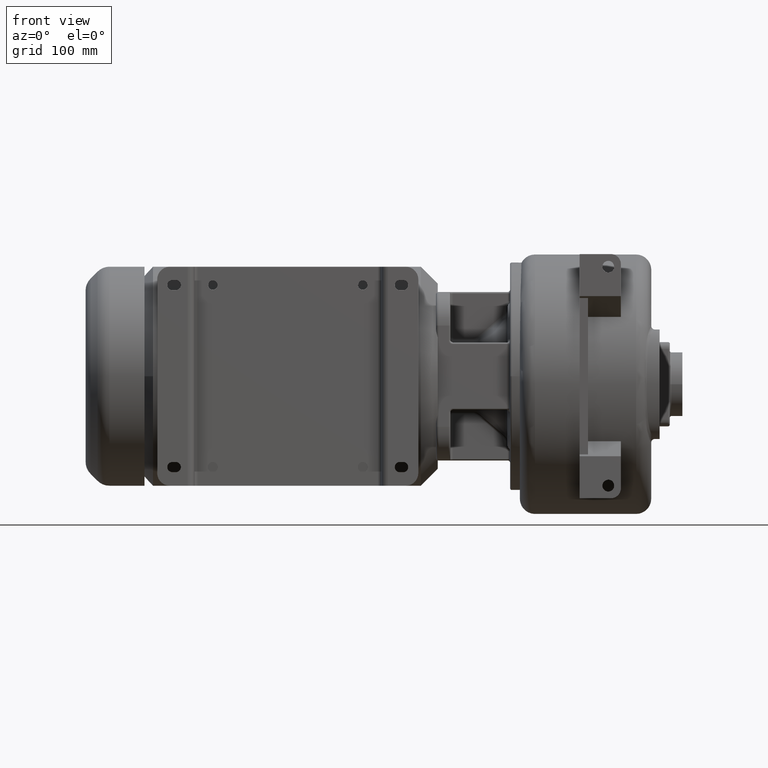
[diagram: clean part render]
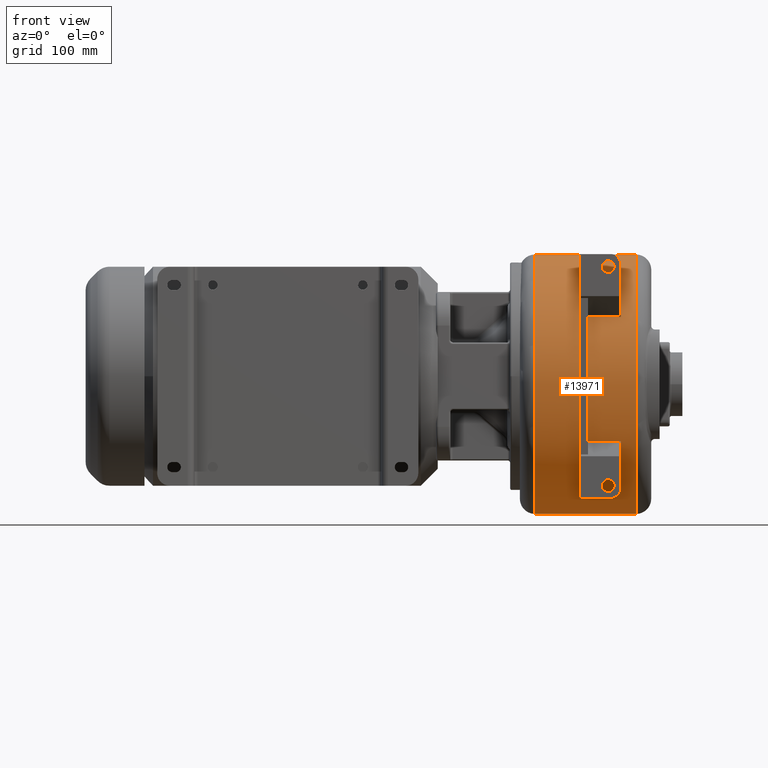
[diagram: same view with one face highlighted and labeled with its STEP entity id]
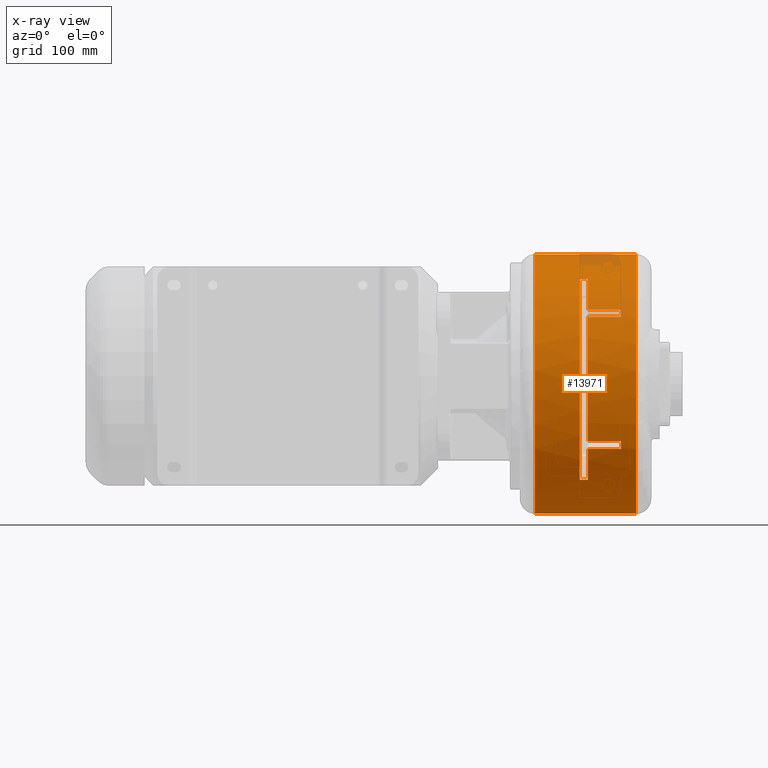
[diagram: x-ray of the same camera — body ghosted, the highlighted face saturated]
A machine part, front view. The second image highlights one B-rep face of the part: STEP entity #13971.
The next image is the same camera in x-ray: the body ghosted, the highlighted face saturated — about 2% of this face is hidden behind the body in this view.
In plain terms, the highlighted cylindrical surface (partial cylindrical patch) has radius 154 mm, axis along (-1, 0, 0).
Its self-contained STEP definition (entity closure, byte-faithful):
#2857=CARTESIAN_POINT('',(5.335E2,0.E0,-9.5E0));
#2858=DIRECTION('',(-1.E0,0.E0,0.E0));
#2859=DIRECTION('',(0.E0,0.E0,-1.E0));
#2860=AXIS2_PLACEMENT_3D('',#2857,#2858,#2859);
#2862=CARTESIAN_POINT('',(6.535E2,0.E0,-9.5E0));
#2863=DIRECTION('',(1.E0,0.E0,0.E0));
#2864=DIRECTION('',(0.E0,0.E0,1.E0));
#2865=AXIS2_PLACEMENT_3D('',#2862,#2863,#2864);
#2867=DIRECTION('',(1.E0,-7.876893581837E-14,0.E0));
#2868=VECTOR('',#2867,1.2E2);
#2869=CARTESIAN_POINT('',(5.335E2,1.821441961518E-11,-1.635E2));
#2870=LINE('',#2869,#2868);
#2871=DIRECTION('',(-1.E0,0.E0,0.E0));
#2872=VECTOR('',#2871,1.E1);
#2873=CARTESIAN_POINT('',(5.965E2,-1.040117051650E2,-1.230674477510E2));
#2874=LINE('',#2873,#2872);
#2875=CARTESIAN_POINT('',(5.965E2,0.E0,-9.5E0));
#2876=DIRECTION('',(-1.E0,0.E0,0.E0));
#2877=DIRECTION('',(0.E0,-6.754006828897E-1,-7.374509594218E-1));
#2878=AXIS2_PLACEMENT_3D('',#2875,#2876,#2877);
#2880=DIRECTION('',(-1.E0,0.E0,0.E0));
#2881=VECTOR('',#2880,3.9E1);
#2882=CARTESIAN_POINT('',(6.355E2,-1.334162374529E2,-8.641623745290E1));
#2883=LINE('',#2882,#2881);
#2884=CARTESIAN_POINT('',(6.355E2,0.E0,-9.5E0));
#2885=DIRECTION('',(-1.E0,0.E0,0.E0));
#2886=DIRECTION('',(0.E0,-8.663392042396E-1,-4.994560873565E-1));
#2887=AXIS2_PLACEMENT_3D('',#2884,#2885,#2886);
#2889=DIRECTION('',(-1.E0,0.E0,0.E0));
#2890=VECTOR('',#2889,3.9E1);
#2891=CARTESIAN_POINT('',(6.355E2,-1.383279713117E2,-7.718583568800E1));
#2892=LINE('',#2891,#2890);
#2893=CARTESIAN_POINT('',(5.965E2,0.E0,-9.5E0));
#2894=DIRECTION('',(-1.E0,0.E0,0.E0));
#2895=DIRECTION('',(0.E0,-8.982335799463E-1,-4.395184135584E-1));
#2896=AXIS2_PLACEMENT_3D('',#2893,#2894,#2895);
#2898=CARTESIAN_POINT('',(5.965E2,0.E0,-9.5E0));
#2899=DIRECTION('',(-1.E0,0.E0,0.E0));
#2900=DIRECTION('',(0.E0,-1.E0,0.E0));
#2901=AXIS2_PLACEMENT_3D('',#2898,#2899,#2900);
#2903=DIRECTION('',(-1.E0,0.E0,0.E0));
#2904=VECTOR('',#2903,3.9E1);
#2905=CARTESIAN_POINT('',(6.355E2,-1.316098784539E2,7.046774283016E1));
#2906=LINE('',#2905,#2904);
#2907=CARTESIAN_POINT('',(6.355E2,0.E0,-9.5E0));
#2908=DIRECTION('',(-1.E0,0.E0,0.E0));
#2909=DIRECTION('',(0.E0,-8.546096003500E-1,5.192710573387E-1));
#2910=AXIS2_PLACEMENT_3D('',#2907,#2908,#2909);
#2912=DIRECTION('',(-1.E0,0.E0,0.E0));
#2913=VECTOR('',#2912,3.9E1);
#2914=CARTESIAN_POINT('',(6.355E2,-1.260180637469E2,7.901806374686E1));
#2915=LINE('',#2914,#2913);
#2916=CARTESIAN_POINT('',(5.965E2,0.E0,-9.5E0));
#2917=DIRECTION('',(-1.E0,0.E0,0.E0));
#2918=DIRECTION('',(0.E0,-8.182991152393E-1,5.747926217328E-1));
#2919=AXIS2_PLACEMENT_3D('',#2916,#2917,#2918);
#2921=DIRECTION('',(-1.E0,0.E0,0.E0));
#2922=VECTOR('',#2921,1.E1);
#2923=CARTESIAN_POINT('',(5.965E2,-9.037405408398E1,1.151937462282E2));
#2924=LINE('',#2923,#2922);
#2933=DIRECTION('',(1.E0,1.469734056680E-13,0.E0));
#2934=VECTOR('',#2933,1.2E2);
#2935=CARTESIAN_POINT('',(5.335E2,1.659092356568E-11,1.445E2));
#2936=LINE('',#2935,#2934);
#4781=CARTESIAN_POINT('',(5.865E2,0.E0,-9.5E0));
#4782=DIRECTION('',(-1.E0,0.E0,0.E0));
#4783=DIRECTION('',(0.E0,-6.754006828897E-1,-7.374509594218E-1));
#4784=AXIS2_PLACEMENT_3D('',#4781,#4782,#4783);
#4810=CARTESIAN_POINT('',(5.865E2,0.E0,-9.5E0));
#4811=DIRECTION('',(-1.E0,0.E0,0.E0));
#4812=DIRECTION('',(0.E0,-1.E0,0.E0));
#4813=AXIS2_PLACEMENT_3D('',#4810,#4811,#4812);
#11278=CARTESIAN_POINT('',(6.535E2,8.762147316971E-12,-1.635E2));
#11279=VERTEX_POINT('',#11278);
#11280=CARTESIAN_POINT('',(6.535E2,-4.217359641026E-14,1.445E2));
#11281=VERTEX_POINT('',#11280);
#11312=CARTESIAN_POINT('',(5.335E2,1.821121031753E-11,-1.635E2));
#11313=VERTEX_POINT('',#11312);
#11314=CARTESIAN_POINT('',(5.335E2,-4.217359641026E-14,1.445E2));
#11315=VERTEX_POINT('',#11314);
#11328=CARTESIAN_POINT('',(6.355E2,-1.334162374529E2,-8.641623745290E1));
#11329=CARTESIAN_POINT('',(6.355E2,-1.383279713117E2,-7.718583568800E1));
#11330=VERTEX_POINT('',#11328);
#11331=VERTEX_POINT('',#11329);
#11332=CARTESIAN_POINT('',(6.355E2,-1.316098784539E2,7.046774283016E1));
#11333=CARTESIAN_POINT('',(6.355E2,-1.260180637469E2,7.901806374686E1));
#11334=VERTEX_POINT('',#11332);
#11335=VERTEX_POINT('',#11333);
#11344=CARTESIAN_POINT('',(5.965E2,-1.040117051650E2,-1.230674477510E2));
#11345=CARTESIAN_POINT('',(5.965E2,-1.334162374529E2,-8.641623745290E1));
#11346=VERTEX_POINT('',#11344);
#11347=VERTEX_POINT('',#11345);
#11348=CARTESIAN_POINT('',(5.965E2,-1.383279713117E2,-7.718583568800E1));
#11349=CARTESIAN_POINT('',(5.965E2,-1.54E2,-9.5E0));
#11350=VERTEX_POINT('',#11348);
#11351=VERTEX_POINT('',#11349);
#11352=CARTESIAN_POINT('',(5.965E2,-1.316098784539E2,7.046774283016E1));
#11353=VERTEX_POINT('',#11352);
#11354=CARTESIAN_POINT('',(5.965E2,-1.260180637469E2,7.901806374686E1));
#11355=CARTESIAN_POINT('',(5.965E2,-9.037405408398E1,1.151937462282E2));
#11356=VERTEX_POINT('',#11354);
#11357=VERTEX_POINT('',#11355);
#11358=CARTESIAN_POINT('',(5.865E2,-1.040117051650E2,-1.230674477510E2));
#11359=VERTEX_POINT('',#11358);
#11360=CARTESIAN_POINT('',(5.865E2,-9.037405408398E1,1.151937462282E2));
#11361=VERTEX_POINT('',#11360);
#11375=CARTESIAN_POINT('',(5.865E2,-1.54E2,-9.5E0));
#11377=VERTEX_POINT('',#11375);
#13927=CARTESIAN_POINT('',(5.155E2,0.E0,-9.5E0));
#13928=DIRECTION('',(-1.E0,0.E0,0.E0));
#13929=DIRECTION('',(0.E0,0.E0,1.E0));
#13930=AXIS2_PLACEMENT_3D('',#13927,#13928,#13929);
#13931=CYLINDRICAL_SURFACE('',#13930,1.54E2);
#13932=ORIENTED_EDGE('',*,*,#13909,.T.);
#13934=ORIENTED_EDGE('',*,*,#13933,.T.);
#13936=ORIENTED_EDGE('',*,*,#13935,.T.);
#13938=ORIENTED_EDGE('',*,*,#13937,.F.);
#13939=EDGE_LOOP('',(#13932,#13934,#13936,#13938));
#13940=FACE_OUTER_BOUND('',#13939,.F.);
#13942=ORIENTED_EDGE('',*,*,#13941,.F.);
#13944=ORIENTED_EDGE('',*,*,#13943,.F.);
#13946=ORIENTED_EDGE('',*,*,#13945,.T.);
#13948=ORIENTED_EDGE('',*,*,#13947,.F.);
#13950=ORIENTED_EDGE('',*,*,#13949,.T.);
#13952=ORIENTED_EDGE('',*,*,#13951,.T.);
#13954=ORIENTED_EDGE('',*,*,#13953,.T.);
#13956=ORIENTED_EDGE('',*,*,#13955,.T.);
#13958=ORIENTED_EDGE('',*,*,#13957,.F.);
#13960=ORIENTED_EDGE('',*,*,#13959,.T.);
#13962=ORIENTED_EDGE('',*,*,#13961,.T.);
#13964=ORIENTED_EDGE('',*,*,#13963,.T.);
#13966=ORIENTED_EDGE('',*,*,#13965,.T.);
#13968=ORIENTED_EDGE('',*,*,#13967,.F.);
#13969=EDGE_LOOP('',(#13942,#13944,#13946,#13948,#13950,#13952,#13954,#13956,
#13958,#13960,#13962,#13964,#13966,#13968));
#13970=FACE_BOUND('',#13969,.F.);
#13971=ADVANCED_FACE('',(#13940,#13970),#13931,.T.);
#2861=CIRCLE('',#2860,1.54E2);
#2866=CIRCLE('',#2865,1.54E2);
#2879=CIRCLE('',#2878,1.54E2);
#2888=CIRCLE('',#2887,1.54E2);
#2897=CIRCLE('',#2896,1.54E2);
#2902=CIRCLE('',#2901,1.54E2);
#2911=CIRCLE('',#2910,1.54E2);
#2920=CIRCLE('',#2919,1.54E2);
#4785=CIRCLE('',#4784,1.54E2);
#4814=CIRCLE('',#4813,1.54E2);
#13909=EDGE_CURVE('',#11313,#11315,#2861,.T.);
#13933=EDGE_CURVE('',#11315,#11281,#2936,.T.);
#13935=EDGE_CURVE('',#11281,#11279,#2866,.T.);
#13937=EDGE_CURVE('',#11313,#11279,#2870,.T.);
#13941=EDGE_CURVE('',#11359,#11377,#4785,.T.);
#13943=EDGE_CURVE('',#11346,#11359,#2874,.T.);
#13945=EDGE_CURVE('',#11346,#11347,#2879,.T.);
#13947=EDGE_CURVE('',#11330,#11347,#2883,.T.);
#13949=EDGE_CURVE('',#11330,#11331,#2888,.T.);
#13951=EDGE_CURVE('',#11331,#11350,#2892,.T.);
#13953=EDGE_CURVE('',#11350,#11351,#2897,.T.);
#13955=EDGE_CURVE('',#11351,#11353,#2902,.T.);
#13957=EDGE_CURVE('',#11334,#11353,#2906,.T.);
#13959=EDGE_CURVE('',#11334,#11335,#2911,.T.);
#13961=EDGE_CURVE('',#11335,#11356,#2915,.T.);
#13963=EDGE_CURVE('',#11356,#11357,#2920,.T.);
#13965=EDGE_CURVE('',#11357,#11361,#2924,.T.);
#13967=EDGE_CURVE('',#11377,#11361,#4814,.T.);